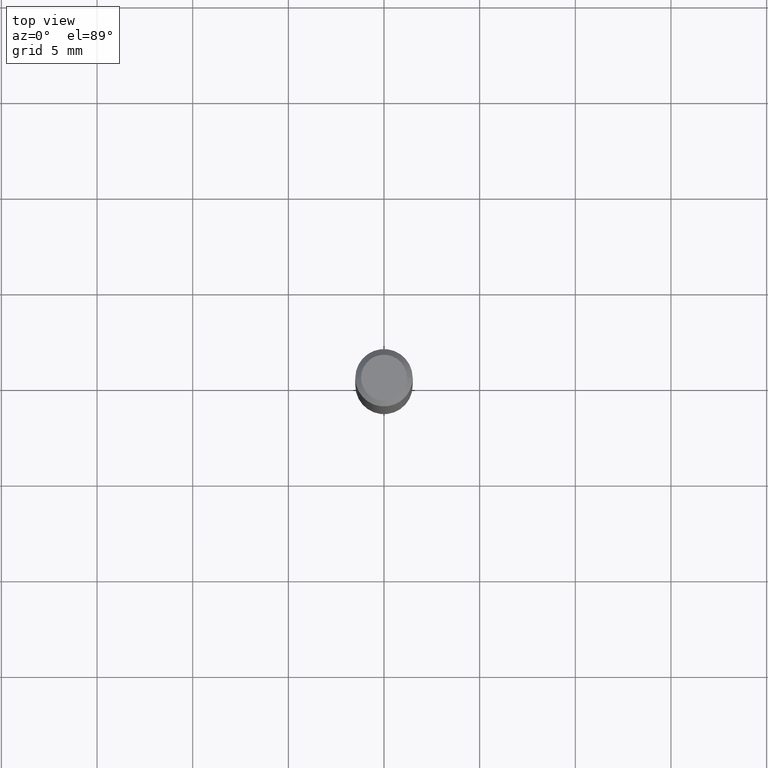
[diagram: clean part render]
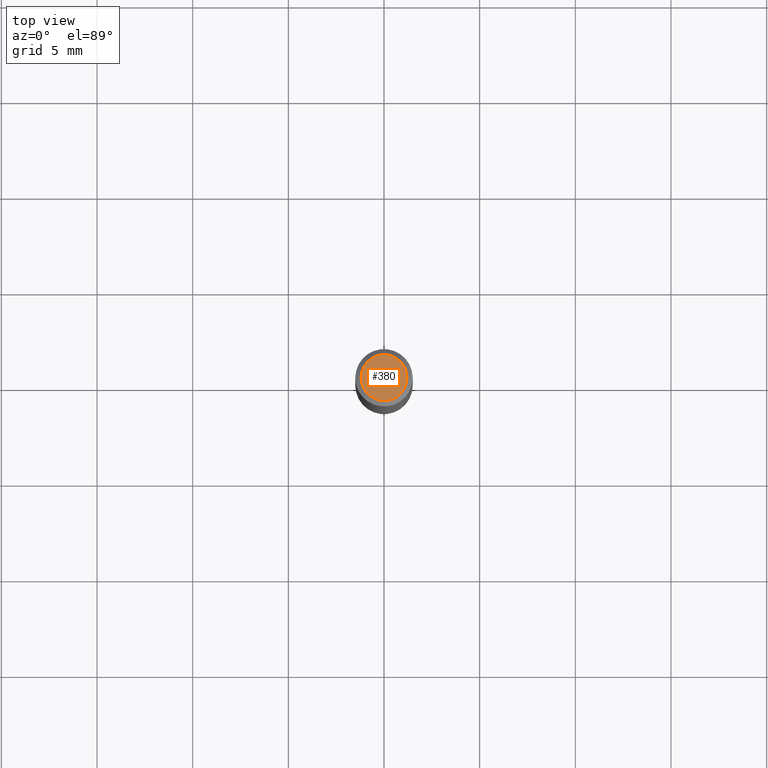
[diagram: same view with one face highlighted and labeled with its STEP entity id]
A machine part, top view. The second image highlights one B-rep face of the part: STEP entity #380.
In plain terms, the highlighted planar face has unit normal (0, -0, -1).
Its self-contained STEP definition (entity closure, byte-faithful):
#2 = CARTESIAN_POINT ( 'NONE',  ( -0.04724000000000000421, 3.504923541997677355E-16, -3.380025165670481712E-19 ) ) ;
#18 = AXIS2_PLACEMENT_3D ( 'NONE', #406, #82, #260 ) ;
#23 = FACE_OUTER_BOUND ( 'NONE', #356, .T. ) ;
#32 = ORIENTED_EDGE ( 'NONE', *, *, #312, .T. ) ;
#57 = CARTESIAN_POINT ( 'NONE',  ( 4.132873053354867254E-48, -5.900647395337818946E-34, -1.690012582823346072E-19 ) ) ;
#79 = AXIS2_PLACEMENT_3D ( 'NONE', #57, #178, #122 ) ;
#82 = DIRECTION ( 'NONE',  ( -2.445468806185136597E-29, 3.491481338843145583E-15, 1.000000000000000000 ) ) ;
#112 = CARTESIAN_POINT ( 'NONE',  ( 8.265746106709734507E-48, -1.180129479067563789E-33, -3.380025165646692144E-19 ) ) ;
#115 = DIRECTION ( 'NONE',  ( 1.000000000000000000, -6.982962677686266711E-15, 4.876185090822587894E-29 ) ) ;
#122 = DIRECTION ( 'NONE',  ( -1.000000000000000000, 6.982962677686265922E-15, -4.876176775795935793E-29 ) ) ;
#178 = DIRECTION ( 'NONE',  ( 2.438088387897960049E-29, -3.491481338843145188E-15, -1.000000000000000000 ) ) ;
#205 = CARTESIAN_POINT ( 'NONE',  ( 0.04724000000000000421, -3.852183633974369345E-16, -3.380025165621689721E-19 ) ) ;
#214 = AXIS2_PLACEMENT_3D ( 'NONE', #112, #369, #115 ) ;
#220 = VERTEX_POINT ( 'NONE', #2 ) ;
#229 = CIRCLE ( 'NONE', #214, 0.04724000000000000421 ) ;
#260 = DIRECTION ( 'NONE',  ( 1.000000000000000000, -6.982962677686266711E-15, 4.876185090822587894E-29 ) ) ;
#306 = EDGE_CURVE ( 'NONE', #220, #388, #229, .T. ) ;
#312 = EDGE_CURVE ( 'NONE', #388, #220, #398, .T. ) ;
#313 = ORIENTED_EDGE ( 'NONE', *, *, #306, .T. ) ;
#356 = EDGE_LOOP ( 'NONE', ( #313, #32 ) ) ;
#369 = DIRECTION ( 'NONE',  ( -2.445468806185136597E-29, 3.491481338843145583E-15, 1.000000000000000000 ) ) ;
#379 = PLANE ( 'NONE',  #79 ) ;
#380 = ADVANCED_FACE ( 'NONE', ( #23 ), #379, .F. ) ;
#388 = VERTEX_POINT ( 'NONE', #205 ) ;
#398 = CIRCLE ( 'NONE', #18, 0.04724000000000000421 ) ;
#406 = CARTESIAN_POINT ( 'NONE',  ( 8.265746106709734507E-48, -1.180129479067563789E-33, -3.380025165646692144E-19 ) ) ;